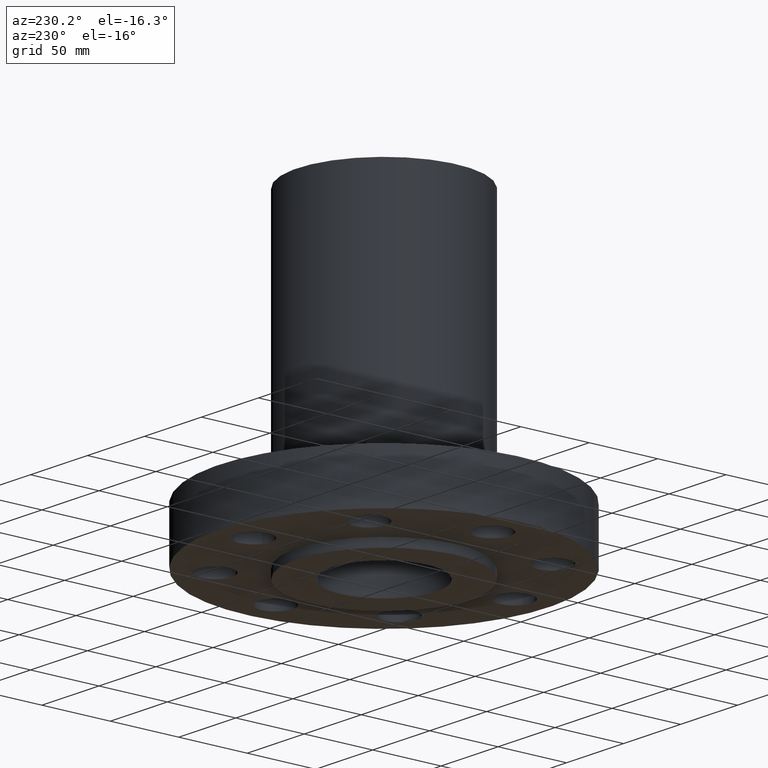
[diagram: clean part render]
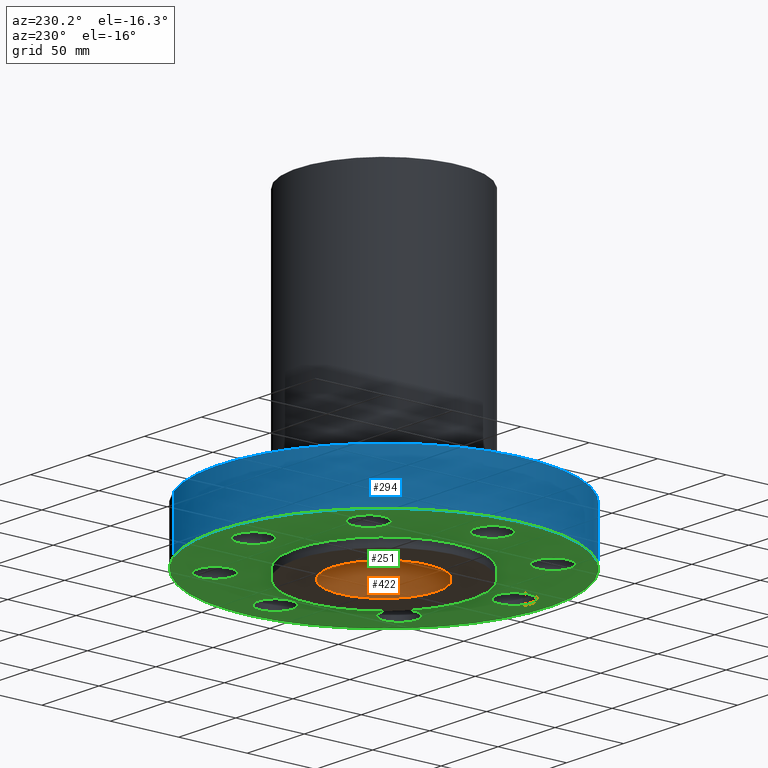
[diagram: same view with three faces highlighted in distinct colors, each labeled with its STEP entity id]
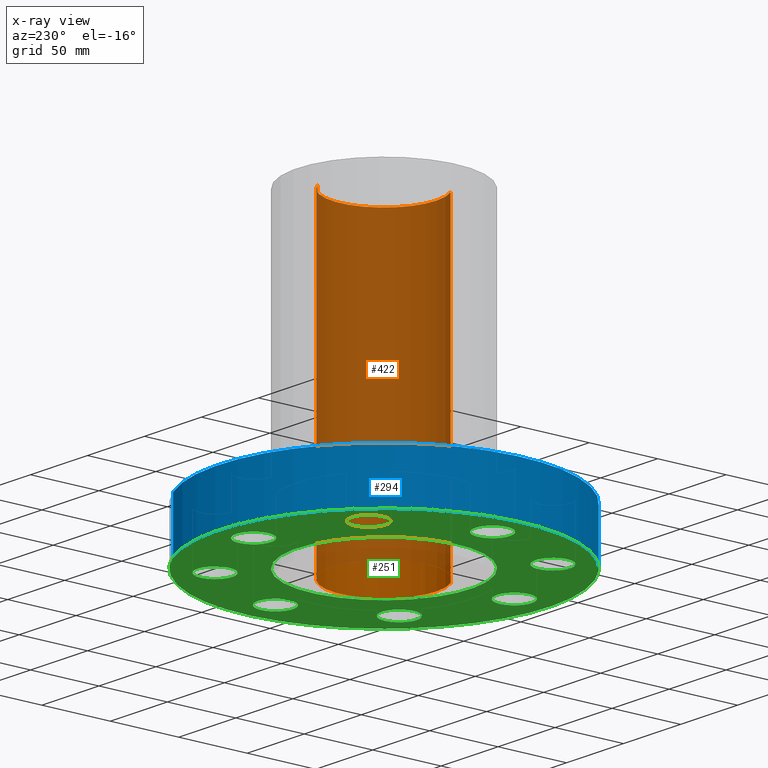
[diagram: x-ray of the same camera — body ghosted, the three highlighted faces saturated]
A machine part, auxiliary view with three faces highlighted in distinct colors.
The next image is the same camera in x-ray (body ghosted, the three faces saturated) — at least one of them is partly hidden behind the body in this view.
Their STEP definitions:

[orange] entity #422 — the highlighted cylindrical surface (partial cylindrical patch) has radius 38.1 mm, axis along (0, 0, -1).
#384=AXIS2_PLACEMENT_3D('Circle Axis2P3D',#382,#383,$) ;
#395=AXIS2_PLACEMENT_3D('Cylinder Axis2P3D',#392,#393,#394) ;
#406=AXIS2_PLACEMENT_3D('Circle Axis2P3D',#404,#405,$) ;
#377=CARTESIAN_POINT('Vertex',(-0.719138307909,-1.31637384284,8.75000000004)) ;
#379=CARTESIAN_POINT('Vertex',(0.719138307909,1.31637384284,8.75000000004)) ;
#382=CARTESIAN_POINT('Axis2P3D Location',(0.,0.,8.75000000003)) ;
#392=CARTESIAN_POINT('Axis2P3D Location',(0.,0.,4.25000000002)) ;
#397=CARTESIAN_POINT('Line Origine',(0.719138307909,1.31637384284,4.25000000002)) ;
#401=CARTESIAN_POINT('Vertex',(0.719138307909,1.31637384284,-0.250000000001)) ;
#404=CARTESIAN_POINT('Axis2P3D Location',(0.,0.,-0.250000000001)) ;
#408=CARTESIAN_POINT('Vertex',(-0.719138307909,-1.31637384284,-0.250000000001)) ;
#411=CARTESIAN_POINT('Line Origine',(-0.719138307909,-1.31637384284,4.25000000002)) ;
#383=DIRECTION('Axis2P3D Direction',(0.,0.,-0.0393700787402)) ;
#393=DIRECTION('Axis2P3D Direction',(0.,0.,-0.0393700787402)) ;
#394=DIRECTION('Axis2P3D XDirection',(-0.0188750212049,-0.0345504945626,0.)) ;
#398=DIRECTION('Vector Direction',(0.,0.,-0.0393700787402)) ;
#405=DIRECTION('Axis2P3D Direction',(0.,0.,-0.0393700787402)) ;
#412=DIRECTION('Vector Direction',(0.,0.,-0.0393700787402)) ;
#399=VECTOR('Line Direction',#398,0.0393700787402) ;
#413=VECTOR('Line Direction',#412,0.0393700787402) ;
#417=ORIENTED_EDGE('',*,*,#386,.F.) ;
#418=ORIENTED_EDGE('',*,*,#403,.T.) ;
#419=ORIENTED_EDGE('',*,*,#410,.T.) ;
#420=ORIENTED_EDGE('',*,*,#415,.F.) ;
#422=ADVANCED_FACE('PartBody',(#421),#396,.F.) ;
#385=CIRCLE('generated circle',#384,1.50000000001) ;
#407=CIRCLE('generated circle',#406,1.50000000001) ;
#396=CYLINDRICAL_SURFACE('generated cylinder',#395,1.50000000001) ;
#386=EDGE_CURVE('',#380,#378,#385,.T.) ;
#403=EDGE_CURVE('',#380,#402,#400,.T.) ;
#410=EDGE_CURVE('',#402,#409,#407,.T.) ;
#415=EDGE_CURVE('',#378,#409,#414,.T.) ;
#416=EDGE_LOOP('',(#417,#418,#419,#420)) ;
#421=FACE_OUTER_BOUND('',#416,.T.) ;
#400=LINE('Line',#397,#399) ;
#414=LINE('Line',#411,#413) ;
#378=VERTEX_POINT('',#377) ;
#380=VERTEX_POINT('',#379) ;
#402=VERTEX_POINT('',#401) ;
#409=VERTEX_POINT('',#408) ;

[blue] entity #294 — the highlighted cylindrical surface (partial cylindrical patch) has radius 120.65 mm, axis along (0, 0, -1).
#82=AXIS2_PLACEMENT_3D('Circle Axis2P3D',#80,#81,$) ;
#267=AXIS2_PLACEMENT_3D('Cylinder Axis2P3D',#264,#265,#266) ;
#278=AXIS2_PLACEMENT_3D('Circle Axis2P3D',#276,#277,$) ;
#80=CARTESIAN_POINT('Axis2P3D Location',(0.,0.,0.)) ;
#84=CARTESIAN_POINT('Vertex',(-2.27727130838,-4.168517169,5.59482469102E-016)) ;
#86=CARTESIAN_POINT('Vertex',(2.27727130838,4.168517169,5.59482469102E-016)) ;
#264=CARTESIAN_POINT('Axis2P3D Location',(0.,0.,4.25000000002)) ;
#269=CARTESIAN_POINT('Line Origine',(-2.27727130838,-4.168517169,0.750000000003)) ;
#273=CARTESIAN_POINT('Vertex',(-2.27727130838,-4.168517169,1.50000000001)) ;
#276=CARTESIAN_POINT('Axis2P3D Location',(0.,0.,1.50000000001)) ;
#280=CARTESIAN_POINT('Vertex',(2.27727130838,4.168517169,1.50000000001)) ;
#283=CARTESIAN_POINT('Line Origine',(2.27727130838,4.168517169,0.750000000003)) ;
#81=DIRECTION('Axis2P3D Direction',(0.,0.,-0.0393700787402)) ;
#265=DIRECTION('Axis2P3D Direction',(0.,0.,-0.0393700787402)) ;
#266=DIRECTION('Axis2P3D XDirection',(0.0188750212049,0.0345504945626,0.)) ;
#270=DIRECTION('Vector Direction',(0.,0.,-0.0393700787402)) ;
#277=DIRECTION('Axis2P3D Direction',(0.,0.,-0.0393700787402)) ;
#284=DIRECTION('Vector Direction',(0.,0.,-0.0393700787402)) ;
#271=VECTOR('Line Direction',#270,0.0393700787402) ;
#285=VECTOR('Line Direction',#284,0.0393700787402) ;
#289=ORIENTED_EDGE('',*,*,#88,.F.) ;
#290=ORIENTED_EDGE('',*,*,#275,.T.) ;
#291=ORIENTED_EDGE('',*,*,#282,.T.) ;
#292=ORIENTED_EDGE('',*,*,#287,.F.) ;
#294=ADVANCED_FACE('PartBody',(#293),#268,.T.) ;
#83=CIRCLE('generated circle',#82,4.75000000002) ;
#279=CIRCLE('generated circle',#278,4.75000000002) ;
#268=CYLINDRICAL_SURFACE('generated cylinder',#267,4.75000000002) ;
#88=EDGE_CURVE('',#85,#87,#83,.T.) ;
#275=EDGE_CURVE('',#85,#274,#272,.F.) ;
#282=EDGE_CURVE('',#274,#281,#279,.T.) ;
#287=EDGE_CURVE('',#87,#281,#286,.F.) ;
#288=EDGE_LOOP('',(#289,#290,#291,#292)) ;
#293=FACE_OUTER_BOUND('',#288,.T.) ;
#272=LINE('Line',#269,#271) ;
#286=LINE('Line',#283,#285) ;
#85=VERTEX_POINT('',#84) ;
#87=VERTEX_POINT('',#86) ;
#274=VERTEX_POINT('',#273) ;
#281=VERTEX_POINT('',#280) ;

[green] entity #251 — the highlighted planar face has unit normal (0, 0, -1).
#65=AXIS2_PLACEMENT_3D('Circle Axis2P3D',#63,#64,$) ;
#78=AXIS2_PLACEMENT_3D('Plane Axis2P3D',#75,#76,#77) ;
#82=AXIS2_PLACEMENT_3D('Circle Axis2P3D',#80,#81,$) ;
#91=AXIS2_PLACEMENT_3D('Circle Axis2P3D',#89,#90,$) ;
#100=AXIS2_PLACEMENT_3D('Circle Axis2P3D',#98,#99,$) ;
#109=AXIS2_PLACEMENT_3D('Circle Axis2P3D',#107,#108,$) ;
#118=AXIS2_PLACEMENT_3D('Circle Axis2P3D',#116,#117,$) ;
#127=AXIS2_PLACEMENT_3D('Circle Axis2P3D',#125,#126,$) ;
#136=AXIS2_PLACEMENT_3D('Circle Axis2P3D',#134,#135,$) ;
#145=AXIS2_PLACEMENT_3D('Circle Axis2P3D',#143,#144,$) ;
#154=AXIS2_PLACEMENT_3D('Circle Axis2P3D',#152,#153,$) ;
#163=AXIS2_PLACEMENT_3D('Circle Axis2P3D',#161,#162,$) ;
#172=AXIS2_PLACEMENT_3D('Circle Axis2P3D',#170,#171,$) ;
#181=AXIS2_PLACEMENT_3D('Circle Axis2P3D',#179,#180,$) ;
#190=AXIS2_PLACEMENT_3D('Circle Axis2P3D',#188,#189,$) ;
#199=AXIS2_PLACEMENT_3D('Circle Axis2P3D',#197,#198,$) ;
#208=AXIS2_PLACEMENT_3D('Circle Axis2P3D',#206,#207,$) ;
#217=AXIS2_PLACEMENT_3D('Circle Axis2P3D',#215,#216,$) ;
#226=AXIS2_PLACEMENT_3D('Circle Axis2P3D',#224,#225,$) ;
#235=AXIS2_PLACEMENT_3D('Circle Axis2P3D',#233,#234,$) ;
#244=AXIS2_PLACEMENT_3D('Circle Axis2P3D',#242,#243,$) ;
#46=CARTESIAN_POINT('Vertex',(3.31120871907,-0.239712769303,2.2401153548E-016)) ;
#60=CARTESIAN_POINT('Vertex',(4.18879128096,0.239712769303,2.2401153548E-016)) ;
#63=CARTESIAN_POINT('Axis2P3D Location',(3.75000000002,0.,0.)) ;
#75=CARTESIAN_POINT('Axis2P3D Location',(0.,2.50000000001,0.)) ;
#80=CARTESIAN_POINT('Axis2P3D Location',(0.,0.,0.)) ;
#84=CARTESIAN_POINT('Vertex',(-2.27727130838,-4.168517169,5.59482469102E-016)) ;
#86=CARTESIAN_POINT('Vertex',(2.27727130838,4.168517169,5.59482469102E-016)) ;
#89=CARTESIAN_POINT('Axis2P3D Location',(0.,0.,0.)) ;
#98=CARTESIAN_POINT('Axis2P3D Location',(3.75000000001,0.,0.)) ;
#107=CARTESIAN_POINT('Axis2P3D Location',(0.,0.,0.)) ;
#111=CARTESIAN_POINT('Vertex',(1.19856384652,2.19395640473,1.1189649382E-015)) ;
#113=CARTESIAN_POINT('Vertex',(-1.19856384652,-2.19395640473,1.1189649382E-015)) ;
#116=CARTESIAN_POINT('Axis2P3D Location',(0.,0.,0.)) ;
#125=CARTESIAN_POINT('Axis2P3D Location',(2.65165042946,-2.65165042946,0.)) ;
#129=CARTESIAN_POINT('Vertex',(3.13142524445,-2.79242019503,0.)) ;
#131=CARTESIAN_POINT('Vertex',(2.17187561447,-2.51088066389,0.)) ;
#134=CARTESIAN_POINT('Axis2P3D Location',(2.65165042946,-2.65165042946,0.)) ;
#143=CARTESIAN_POINT('Axis2P3D Location',(4.19611851827E-016,-3.75000000002,0.)) ;
#147=CARTESIAN_POINT('Vertex',(0.239712769303,-4.18879128096,0.)) ;
#149=CARTESIAN_POINT('Vertex',(-0.239712769303,-3.31120871907,0.)) ;
#152=CARTESIAN_POINT('Axis2P3D Location',(2.79741234551E-016,-3.75000000001,0.)) ;
#161=CARTESIAN_POINT('Axis2P3D Location',(-2.65165042946,-2.65165042946,0.)) ;
#165=CARTESIAN_POINT('Vertex',(-2.79242019503,-3.13142524445,0.)) ;
#167=CARTESIAN_POINT('Vertex',(-2.51088066389,-2.17187561447,0.)) ;
#170=CARTESIAN_POINT('Axis2P3D Location',(-2.65165042946,-2.65165042946,0.)) ;
#179=CARTESIAN_POINT('Axis2P3D Location',(-3.75000000002,-2.79741234551E-016,0.)) ;
#183=CARTESIAN_POINT('Vertex',(-4.18879128096,-0.239712769303,0.)) ;
#185=CARTESIAN_POINT('Vertex',(-3.31120871907,0.239712769303,0.)) ;
#188=CARTESIAN_POINT('Axis2P3D Location',(-3.75000000002,-5.59482469102E-016,0.)) ;
#197=CARTESIAN_POINT('Axis2P3D Location',(-2.65165042946,2.65165042946,0.)) ;
#201=CARTESIAN_POINT('Vertex',(-3.13142524445,2.79242019503,0.)) ;
#203=CARTESIAN_POINT('Vertex',(-2.17187561447,2.51088066389,0.)) ;
#206=CARTESIAN_POINT('Axis2P3D Location',(-2.65165042946,2.65165042946,0.)) ;
#215=CARTESIAN_POINT('Axis2P3D Location',(-8.39223703654E-016,3.75000000002,0.)) ;
#219=CARTESIAN_POINT('Vertex',(-0.239712769303,4.18879128096,0.)) ;
#221=CARTESIAN_POINT('Vertex',(0.239712769303,3.31120871907,0.)) ;
#224=CARTESIAN_POINT('Axis2P3D Location',(-7.69288395016E-016,3.75000000002,0.)) ;
#233=CARTESIAN_POINT('Axis2P3D Location',(2.65165042946,2.65165042946,0.)) ;
#237=CARTESIAN_POINT('Vertex',(2.79242019503,3.13142524445,0.)) ;
#239=CARTESIAN_POINT('Vertex',(2.51088066389,2.17187561447,0.)) ;
#242=CARTESIAN_POINT('Axis2P3D Location',(2.65165042946,2.65165042946,0.)) ;
#64=DIRECTION('Axis2P3D Direction',(0.,-0.,0.0393700787402)) ;
#76=DIRECTION('Axis2P3D Direction',(0.,0.,-0.0393700787402)) ;
#77=DIRECTION('Axis2P3D XDirection',(0.0393700787402,0.,0.)) ;
#81=DIRECTION('Axis2P3D Direction',(0.,0.,-0.0393700787402)) ;
#90=DIRECTION('Axis2P3D Direction',(0.,0.,-0.0393700787402)) ;
#99=DIRECTION('Axis2P3D Direction',(0.,0.,-0.0393700787402)) ;
#108=DIRECTION('Axis2P3D Direction',(0.,0.,-0.0393700787402)) ;
#117=DIRECTION('Axis2P3D Direction',(0.,0.,-0.0393700787402)) ;
#126=DIRECTION('Axis2P3D Direction',(0.,0.,-0.0393700787402)) ;
#135=DIRECTION('Axis2P3D Direction',(0.,0.,-0.0393700787402)) ;
#144=DIRECTION('Axis2P3D Direction',(0.,0.,-0.0393700787402)) ;
#153=DIRECTION('Axis2P3D Direction',(0.,0.,-0.0393700787402)) ;
#162=DIRECTION('Axis2P3D Direction',(0.,0.,-0.0393700787402)) ;
#171=DIRECTION('Axis2P3D Direction',(0.,0.,-0.0393700787402)) ;
#180=DIRECTION('Axis2P3D Direction',(0.,0.,-0.0393700787402)) ;
#189=DIRECTION('Axis2P3D Direction',(0.,0.,-0.0393700787402)) ;
#198=DIRECTION('Axis2P3D Direction',(0.,0.,-0.0393700787402)) ;
#207=DIRECTION('Axis2P3D Direction',(0.,0.,-0.0393700787402)) ;
#216=DIRECTION('Axis2P3D Direction',(0.,0.,-0.0393700787402)) ;
#225=DIRECTION('Axis2P3D Direction',(0.,0.,-0.0393700787402)) ;
#234=DIRECTION('Axis2P3D Direction',(0.,0.,-0.0393700787402)) ;
#243=DIRECTION('Axis2P3D Direction',(0.,0.,-0.0393700787402)) ;
#95=ORIENTED_EDGE('',*,*,#88,.T.) ;
#96=ORIENTED_EDGE('',*,*,#93,.T.) ;
#104=ORIENTED_EDGE('',*,*,#102,.F.) ;
#105=ORIENTED_EDGE('',*,*,#67,.F.) ;
#122=ORIENTED_EDGE('',*,*,#115,.F.) ;
#123=ORIENTED_EDGE('',*,*,#120,.F.) ;
#140=ORIENTED_EDGE('',*,*,#133,.F.) ;
#141=ORIENTED_EDGE('',*,*,#138,.F.) ;
#158=ORIENTED_EDGE('',*,*,#151,.F.) ;
#159=ORIENTED_EDGE('',*,*,#156,.F.) ;
#176=ORIENTED_EDGE('',*,*,#169,.F.) ;
#177=ORIENTED_EDGE('',*,*,#174,.F.) ;
#194=ORIENTED_EDGE('',*,*,#187,.F.) ;
#195=ORIENTED_EDGE('',*,*,#192,.F.) ;
#212=ORIENTED_EDGE('',*,*,#205,.F.) ;
#213=ORIENTED_EDGE('',*,*,#210,.F.) ;
#230=ORIENTED_EDGE('',*,*,#223,.F.) ;
#231=ORIENTED_EDGE('',*,*,#228,.F.) ;
#248=ORIENTED_EDGE('',*,*,#241,.F.) ;
#249=ORIENTED_EDGE('',*,*,#246,.F.) ;
#106=FACE_BOUND('',#103,.T.) ;
#124=FACE_BOUND('',#121,.T.) ;
#142=FACE_BOUND('',#139,.T.) ;
#160=FACE_BOUND('',#157,.T.) ;
#178=FACE_BOUND('',#175,.T.) ;
#196=FACE_BOUND('',#193,.T.) ;
#214=FACE_BOUND('',#211,.T.) ;
#232=FACE_BOUND('',#229,.T.) ;
#250=FACE_BOUND('',#247,.T.) ;
#251=ADVANCED_FACE('PartBody',(#97,#106,#124,#142,#160,#178,#196,#214,#232,#250),#79,.T.) ;
#66=CIRCLE('generated circle',#65,0.500000000002) ;
#83=CIRCLE('generated circle',#82,4.75000000002) ;
#92=CIRCLE('generated circle',#91,4.75000000002) ;
#101=CIRCLE('generated circle',#100,0.500000000002) ;
#110=CIRCLE('generated circle',#109,2.50000000001) ;
#119=CIRCLE('generated circle',#118,2.50000000001) ;
#128=CIRCLE('generated circle',#127,0.500000000002) ;
#137=CIRCLE('generated circle',#136,0.500000000002) ;
#146=CIRCLE('generated circle',#145,0.500000000002) ;
#155=CIRCLE('generated circle',#154,0.500000000002) ;
#164=CIRCLE('generated circle',#163,0.500000000002) ;
#173=CIRCLE('generated circle',#172,0.500000000002) ;
#182=CIRCLE('generated circle',#181,0.500000000002) ;
#191=CIRCLE('generated circle',#190,0.500000000002) ;
#200=CIRCLE('generated circle',#199,0.500000000002) ;
#209=CIRCLE('generated circle',#208,0.500000000002) ;
#218=CIRCLE('generated circle',#217,0.500000000002) ;
#227=CIRCLE('generated circle',#226,0.500000000002) ;
#236=CIRCLE('generated circle',#235,0.500000000002) ;
#245=CIRCLE('generated circle',#244,0.500000000002) ;
#67=EDGE_CURVE('',#61,#47,#66,.F.) ;
#88=EDGE_CURVE('',#85,#87,#83,.T.) ;
#93=EDGE_CURVE('',#87,#85,#92,.T.) ;
#102=EDGE_CURVE('',#47,#61,#101,.T.) ;
#115=EDGE_CURVE('',#112,#114,#110,.T.) ;
#120=EDGE_CURVE('',#114,#112,#119,.T.) ;
#133=EDGE_CURVE('',#130,#132,#128,.T.) ;
#138=EDGE_CURVE('',#132,#130,#137,.T.) ;
#151=EDGE_CURVE('',#148,#150,#146,.T.) ;
#156=EDGE_CURVE('',#150,#148,#155,.T.) ;
#169=EDGE_CURVE('',#166,#168,#164,.T.) ;
#174=EDGE_CURVE('',#168,#166,#173,.T.) ;
#187=EDGE_CURVE('',#184,#186,#182,.T.) ;
#192=EDGE_CURVE('',#186,#184,#191,.T.) ;
#205=EDGE_CURVE('',#202,#204,#200,.T.) ;
#210=EDGE_CURVE('',#204,#202,#209,.T.) ;
#223=EDGE_CURVE('',#220,#222,#218,.T.) ;
#228=EDGE_CURVE('',#222,#220,#227,.T.) ;
#241=EDGE_CURVE('',#238,#240,#236,.T.) ;
#246=EDGE_CURVE('',#240,#238,#245,.T.) ;
#94=EDGE_LOOP('',(#95,#96)) ;
#103=EDGE_LOOP('',(#104,#105)) ;
#121=EDGE_LOOP('',(#122,#123)) ;
#139=EDGE_LOOP('',(#140,#141)) ;
#157=EDGE_LOOP('',(#158,#159)) ;
#175=EDGE_LOOP('',(#176,#177)) ;
#193=EDGE_LOOP('',(#194,#195)) ;
#211=EDGE_LOOP('',(#212,#213)) ;
#229=EDGE_LOOP('',(#230,#231)) ;
#247=EDGE_LOOP('',(#248,#249)) ;
#97=FACE_OUTER_BOUND('',#94,.T.) ;
#79=PLANE('',#78) ;
#47=VERTEX_POINT('',#46) ;
#61=VERTEX_POINT('',#60) ;
#85=VERTEX_POINT('',#84) ;
#87=VERTEX_POINT('',#86) ;
#112=VERTEX_POINT('',#111) ;
#114=VERTEX_POINT('',#113) ;
#130=VERTEX_POINT('',#129) ;
#132=VERTEX_POINT('',#131) ;
#148=VERTEX_POINT('',#147) ;
#150=VERTEX_POINT('',#149) ;
#166=VERTEX_POINT('',#165) ;
#168=VERTEX_POINT('',#167) ;
#184=VERTEX_POINT('',#183) ;
#186=VERTEX_POINT('',#185) ;
#202=VERTEX_POINT('',#201) ;
#204=VERTEX_POINT('',#203) ;
#220=VERTEX_POINT('',#219) ;
#222=VERTEX_POINT('',#221) ;
#238=VERTEX_POINT('',#237) ;
#240=VERTEX_POINT('',#239) ;